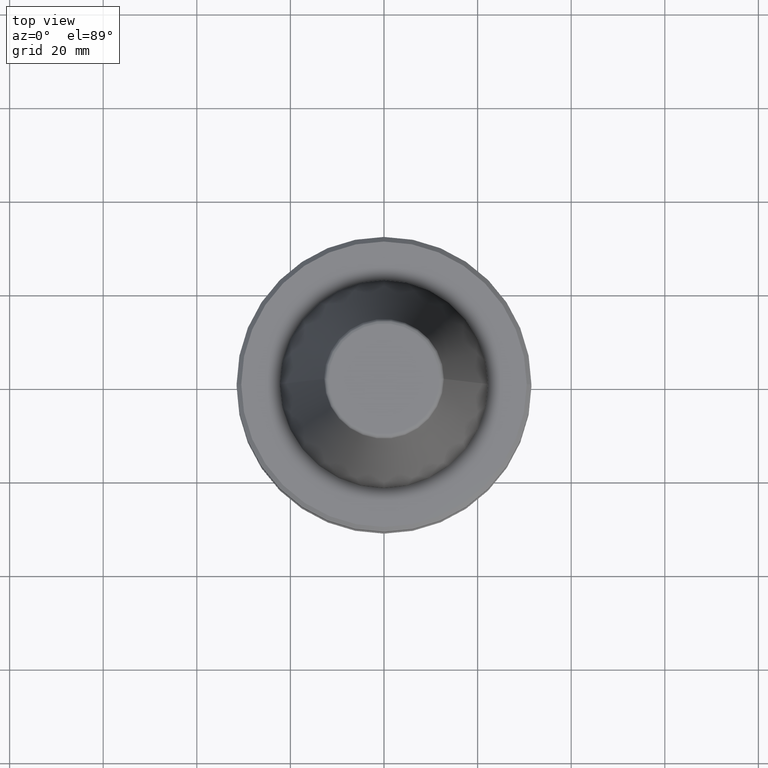
[diagram: clean part render]
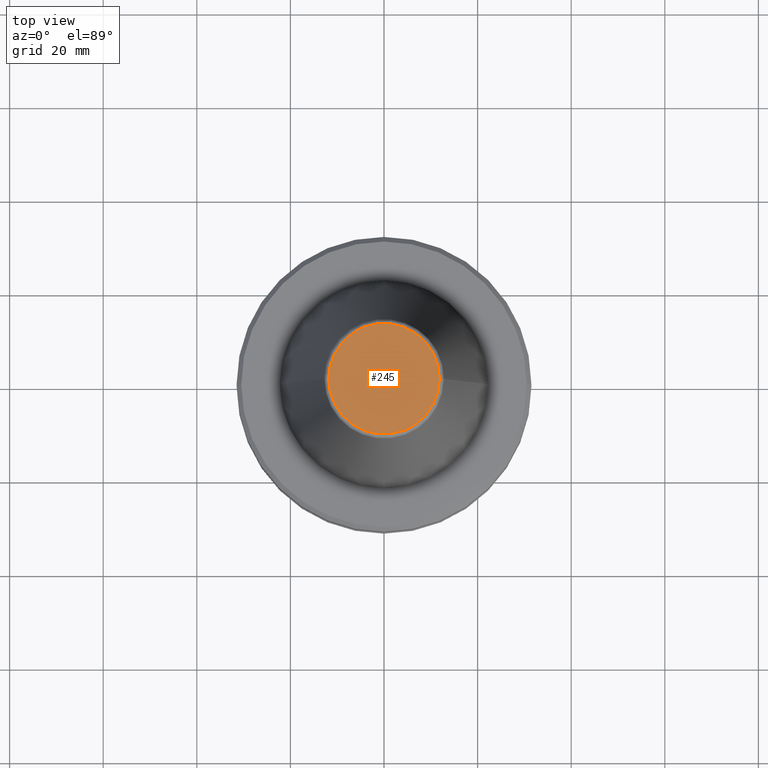
[diagram: same view with one face highlighted and labeled with its STEP entity id]
A machine part, top view. The second image highlights one B-rep face of the part: STEP entity #245.
In plain terms, the highlighted planar face has unit normal (0, 0, -1).
Its self-contained STEP definition (entity closure, byte-faithful):
#4 = AXIS2_PLACEMENT_3D ( 'NONE', #421, #53, #819 ) ;
#43 = EDGE_LOOP ( 'NONE', ( #67, #831 ) ) ;
#53 = DIRECTION ( 'NONE',  ( -0.0000000000000000000, -0.0000000000000000000, 1.000000000000000000 ) ) ;
#67 = ORIENTED_EDGE ( 'NONE', *, *, #621, .T. ) ;
#127 = DIRECTION ( 'NONE',  ( -1.000000000000000000, 0.0000000000000000000, -0.0000000000000000000 ) ) ;
#137 = VERTEX_POINT ( 'NONE', #683 ) ;
#167 = FACE_OUTER_BOUND ( 'NONE', #43, .T. ) ;
#194 = EDGE_CURVE ( 'NONE', #137, #289, #830, .T. ) ;
#243 = DIRECTION ( 'NONE',  ( 0.0000000000000000000, 0.0000000000000000000, -1.000000000000000000 ) ) ;
#245 = ADVANCED_FACE ( 'NONE', ( #167 ), #829, .F. ) ;
#250 = AXIS2_PLACEMENT_3D ( 'NONE', #961, #814, #942 ) ;
#258 = CARTESIAN_POINT ( 'NONE',  ( 0.0000000000000000000, 11.82266927716824200, 65.40000000000051700 ) ) ;
#289 = VERTEX_POINT ( 'NONE', #379 ) ;
#379 = CARTESIAN_POINT ( 'NONE',  ( 11.82266927716824200, 0.0000000000000000000, 65.40000000000067400 ) ) ;
#400 = AXIS2_PLACEMENT_3D ( 'NONE', #258, #243, #127 ) ;
#421 = CARTESIAN_POINT ( 'NONE',  ( 0.0000000000000000000, 0.0000000000000000000, 65.40000000000067400 ) ) ;
#533 = CIRCLE ( 'NONE', #4, 11.82266927716824200 ) ;
#621 = EDGE_CURVE ( 'NONE', #289, #137, #533, .T. ) ;
#683 = CARTESIAN_POINT ( 'NONE',  ( -11.82266927716824200, 1.508450817090346800E-015, 65.40000000000067400 ) ) ;
#814 = DIRECTION ( 'NONE',  ( -0.0000000000000000000, -0.0000000000000000000, 1.000000000000000000 ) ) ;
#819 = DIRECTION ( 'NONE',  ( 1.000000000000000000, 0.0000000000000000000, 0.0000000000000000000 ) ) ;
#829 = PLANE ( 'NONE',  #400 ) ;
#830 = CIRCLE ( 'NONE', #250, 11.82266927716824200 ) ;
#831 = ORIENTED_EDGE ( 'NONE', *, *, #194, .T. ) ;
#942 = DIRECTION ( 'NONE',  ( 1.000000000000000000, 0.0000000000000000000, 0.0000000000000000000 ) ) ;
#961 = CARTESIAN_POINT ( 'NONE',  ( 0.0000000000000000000, 0.0000000000000000000, 65.40000000000067400 ) ) ;